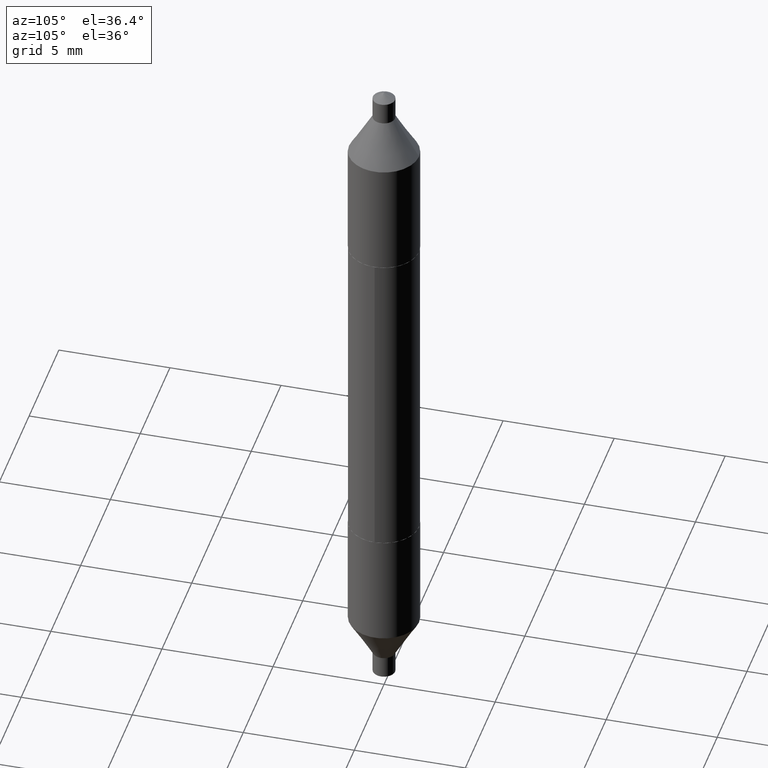
[diagram: clean part render]
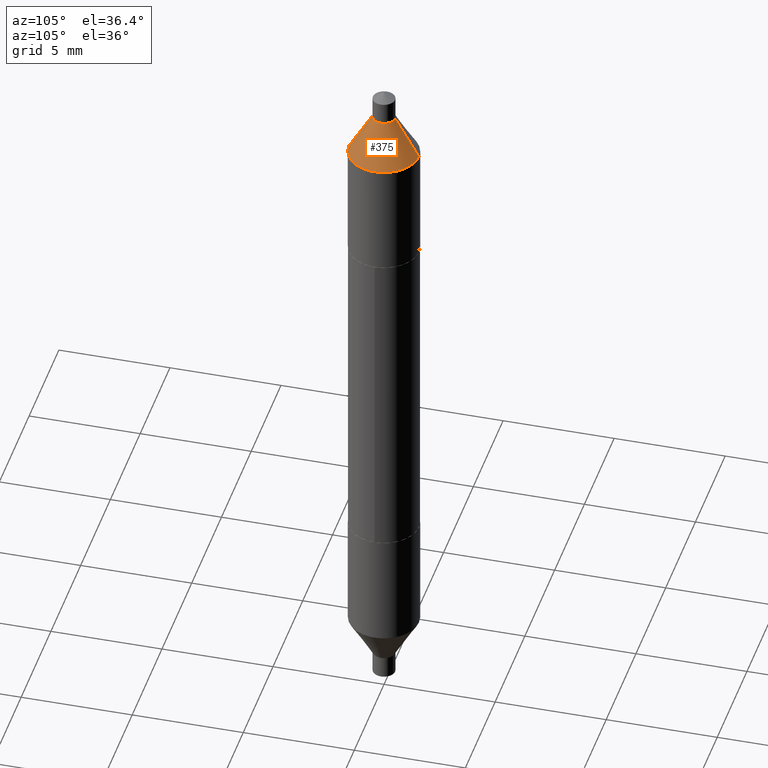
[diagram: same view with one face highlighted and labeled with its STEP entity id]
A machine part, auxiliary view. The second image highlights one B-rep face of the part: STEP entity #375.
In plain terms, the highlighted conical surface has half-angle 30 deg.
Its self-contained STEP definition (entity closure, byte-faithful):
#16 = CARTESIAN_POINT ( 'NONE',  ( 1.351518105560852410E-16, 0.01970000000000198329, 0.5687999999999998613 ) ) ;
#29 = EDGE_CURVE ( 'NONE', #83, #495, #390, .T. ) ;
#42 = DIRECTION ( 'NONE',  ( -2.411471369612255613E-29, 3.540167603029431901E-15, 1.000000000000000000 ) ) ;
#50 = EDGE_CURVE ( 'NONE', #408, #609, #232, .T. ) ;
#83 = VERTEX_POINT ( 'NONE', #125 ) ;
#101 = EDGE_LOOP ( 'NONE', ( #236, #189, #196, #120 ) ) ;
#115 = DIRECTION ( 'NONE',  ( 2.411471369612255613E-29, -3.540167603029431901E-15, -1.000000000000000000 ) ) ;
#120 = ORIENTED_EDGE ( 'NONE', *, *, #592, .T. ) ;
#125 = CARTESIAN_POINT ( 'NONE',  ( 1.351518105560847726E-16, 0.01970000000000198329, 0.5687999999999998613 ) ) ;
#136 = VECTOR ( 'NONE', #238, 39.37007874015748143 ) ;
#141 = CIRCLE ( 'NONE', #341, 0.01969999999999998488 ) ;
#161 = FACE_OUTER_BOUND ( 'NONE', #101, .T. ) ;
#176 = DIRECTION ( 'NONE',  ( 3.430248998885748032E-15, 0.4999999999999914513, -0.8660254037844434816 ) ) ;
#189 = ORIENTED_EDGE ( 'NONE', *, *, #667, .F. ) ;
#196 = ORIENTED_EDGE ( 'NONE', *, *, #50, .T. ) ;
#232 = LINE ( 'NONE', #550, #136 ) ;
#236 = ORIENTED_EDGE ( 'NONE', *, *, #29, .F. ) ;
#238 = DIRECTION ( 'NONE',  ( -3.491481338843074191E-15, -0.4999999999999976685, -0.8660254037844400399 ) ) ;
#292 = CARTESIAN_POINT ( 'NONE',  ( -1.381606163951305151E-29, 1.999382257196558882E-15, 0.5687999999999999723 ) ) ;
#295 = CIRCLE ( 'NONE', #417, 0.06200000000000000649 ) ;
#341 = AXIS2_PLACEMENT_3D ( 'NONE', #292, #42, #619 ) ;
#353 = DIRECTION ( 'NONE',  ( -2.411471369612255613E-29, 3.540167603029431901E-15, 1.000000000000000000 ) ) ;
#371 = CARTESIAN_POINT ( 'NONE',  ( -1.381606163951305151E-29, 1.999382257196558882E-15, 0.5687999999999999723 ) ) ;
#375 = ADVANCED_FACE ( 'NONE', ( #161 ), #518, .T. ) ;
#390 = LINE ( 'NONE', #16, #622 ) ;
#408 = VERTEX_POINT ( 'NONE', #446 ) ;
#417 = AXIS2_PLACEMENT_3D ( 'NONE', #568, #353, #454 ) ;
#446 = CARTESIAN_POINT ( 'NONE',  ( -1.375643647504331674E-16, -0.01969999999999798648, 0.5687999999999999723 ) ) ;
#454 = DIRECTION ( 'NONE',  ( -6.982962677686265922E-15, -1.000000000000000000, 3.304654831045479413E-15 ) ) ;
#481 = AXIS2_PLACEMENT_3D ( 'NONE', #371, #115, #521 ) ;
#494 = CARTESIAN_POINT ( 'NONE',  ( 4.253508758618278662E-16, 0.06200000000000175510, 0.4955342508398351553 ) ) ;
#495 = VERTEX_POINT ( 'NONE', #494 ) ;
#518 = CONICAL_SURFACE ( 'NONE', #481, 0.01969999999999998488, 0.5235987755982925984 ) ;
#521 = DIRECTION ( 'NONE',  ( -6.982962677686265133E-15, -1.000000000000000000, 3.466812174700844249E-15 ) ) ;
#550 = CARTESIAN_POINT ( 'NONE',  ( -1.375643647504331674E-16, -0.01969999999999798648, 0.5687999999999999723 ) ) ;
#568 = CARTESIAN_POINT ( 'NONE',  ( -1.204927907478374845E-29, 1.740009225608063244E-15, 0.4955342508398353774 ) ) ;
#592 = EDGE_CURVE ( 'NONE', #609, #495, #295, .T. ) ;
#609 = VERTEX_POINT ( 'NONE', #678 ) ;
#619 = DIRECTION ( 'NONE',  ( -6.982962677686265133E-15, -1.000000000000000000, 3.466812174700844249E-15 ) ) ;
#622 = VECTOR ( 'NONE', #176, 39.37007874015748854 ) ;
#667 = EDGE_CURVE ( 'NONE', #408, #83, #141, .T. ) ;
#678 = CARTESIAN_POINT ( 'NONE',  ( -4.329436860165605938E-16, -0.06199999999999826483, 0.4955342508398355439 ) ) ;